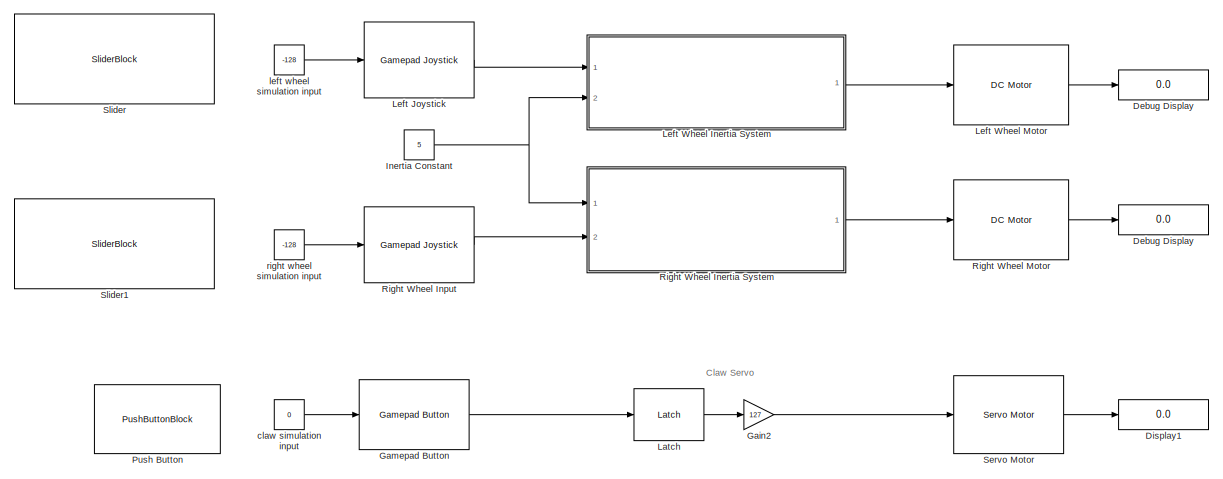
[diagram: root canvas - part 1/2, full width, top band]
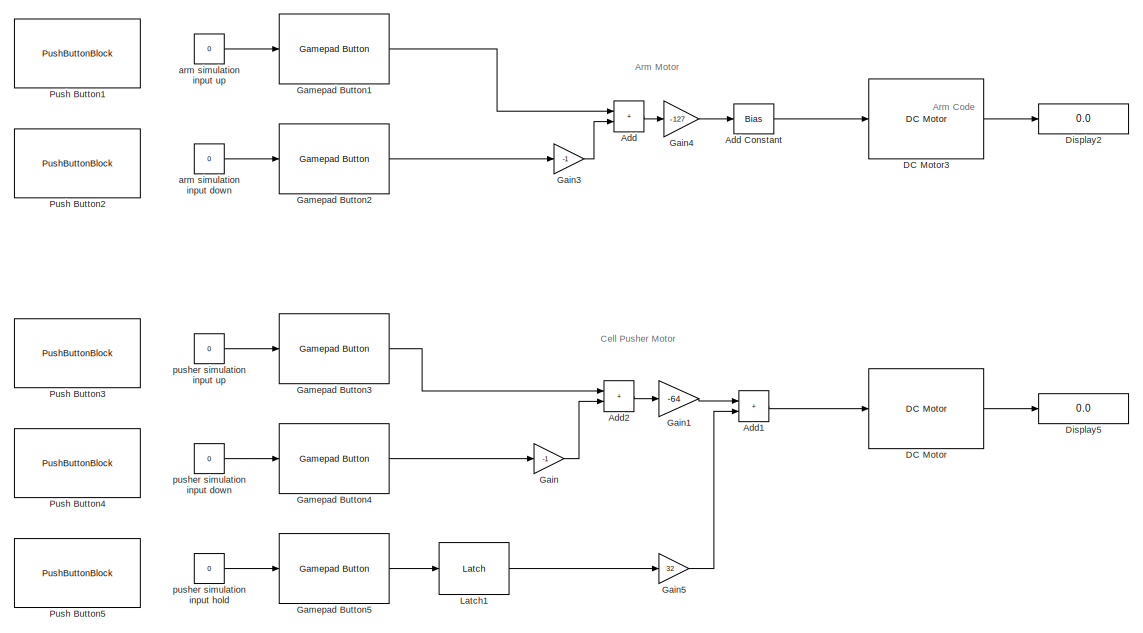
[diagram: root canvas - part 2/2, full width, bottom band]
MODEL slx_83008418470c
KIND model
CONFIG AbsTol = auto
CONFIG EnableMultiTasking = off
CONFIG FixedStep = auto
CONFIG MaxStep = auto
CONFIG MinStep = auto
CONFIG RelTol = 1e-3
CONFIG SampleTimeConstraint = Unconstrained
CONFIG SolverName = VariableStepAuto
CONFIG StartTime = 0.0
CONFIG StopTime = 10.0
BLOCK [Display]  Debug Display
  Decimation = 1
  Ports = [1]
BLOCK [Sum] Add
  IconShape = rectangular
  Ports = [2, 1]
BLOCK [Bias] Add Constant
  Bias = -8
  SaturateOnIntegerOverflow = off
BLOCK [Sum] Add1
  IconShape = rectangular
  Ports = [2, 1]
BLOCK [Sum] Add2
  IconShape = rectangular
  Ports = [2, 1]
BLOCK [Reference] DC Motor  REF=vexarmcortexlib/Actuators/DC Motor
  Ports = [1, 1]
  SourceBlock = vexarmcortexlib/Actuators/DC Motor
  SourceProductBaseCode = EC_VEX_MICRO
  SourceType = DC Motor
BLOCK [Reference] DC Motor3  REF=vexarmcortexlib/Actuators/DC Motor
  Ports = [1, 1]
  SourceBlock = vexarmcortexlib/Actuators/DC Motor
  SourceProductBaseCode = EC_VEX_MICRO
  SourceType = DC Motor
BLOCK [Display] Debug Display
  Decimation = 1
  Ports = [1]
BLOCK [Display] Display1
  Decimation = 1
  Ports = [1]
BLOCK [Display] Display2
  Decimation = 1
  Ports = [1]
BLOCK [Display] Display5
  Decimation = 1
  Ports = [1]
BLOCK [Gain] Gain
  Gain = -1
BLOCK [Gain] Gain1
  Gain = -64
BLOCK [Gain] Gain2
  Gain = 127
BLOCK [Gain] Gain3
  Gain = -1
BLOCK [Gain] Gain4
  Gain = -127
BLOCK [Gain] Gain5
  Gain = 32
BLOCK [Reference] Gamepad Button  REF=vexarmcortexlib/Gamepad/Gamepad Button
  Ports = [1, 1]
  SourceBlock = vexarmcortexlib/Gamepad/Gamepad Button
  SourceProductBaseCode = EC_VEX_MICRO
  SourceType = Gamepad Button
BLOCK [Reference] Gamepad Button1  REF=vexarmcortexlib/Gamepad/Gamepad Button
  Ports = [1, 1]
  SourceBlock = vexarmcortexlib/Gamepad/Gamepad Button
  SourceProductBaseCode = EC_VEX_MICRO
  SourceType = Gamepad Button
BLOCK [Reference] Gamepad Button2  REF=vexarmcortexlib/Gamepad/Gamepad Button
  Ports = [1, 1]
  SourceBlock = vexarmcortexlib/Gamepad/Gamepad Button
  SourceProductBaseCode = EC_VEX_MICRO
  SourceType = Gamepad Button
BLOCK [Reference] Gamepad Button3  REF=vexarmcortexlib/Gamepad/Gamepad Button
  Ports = [1, 1]
  SourceBlock = vexarmcortexlib/Gamepad/Gamepad Button
  SourceProductBaseCode = EC_VEX_MICRO
  SourceType = Gamepad Button
BLOCK [Reference] Gamepad Button4  REF=vexarmcortexlib/Gamepad/Gamepad Button
  Ports = [1, 1]
  SourceBlock = vexarmcortexlib/Gamepad/Gamepad Button
  SourceProductBaseCode = EC_VEX_MICRO
  SourceType = Gamepad Button
BLOCK [Reference] Gamepad Button5  REF=vexarmcortexlib/Gamepad/Gamepad Button
  Ports = [1, 1]
  SourceBlock = vexarmcortexlib/Gamepad/Gamepad Button
  SourceProductBaseCode = EC_VEX_MICRO
  SourceType = Gamepad Button
BLOCK [Constant] Inertia Constant
  Value = 5
BLOCK [Reference] Latch  REF=vexcommonlib/Latch
  Ports = [1, 1]
  SourceBlock = vexcommonlib/Latch
  SourceProductBaseCode = EC_VEX_MICRO,VEXV5
  SourceType = Latch
BLOCK [Reference] Latch1  REF=vexcommonlib/Latch
  Ports = [1, 1]
  SourceBlock = vexcommonlib/Latch
  SourceProductBaseCode = EC_VEX_MICRO,VEXV5
  SourceType = Latch
BLOCK [Reference] Left Joystick  REF=vexarmcortexlib/Gamepad/Gamepad Joystick
  Ports = [1, 1]
  SourceBlock = vexarmcortexlib/Gamepad/Gamepad Joystick
  SourceProductBaseCode = EC_VEX_MICRO
  SourceType = Gamepad Joystick
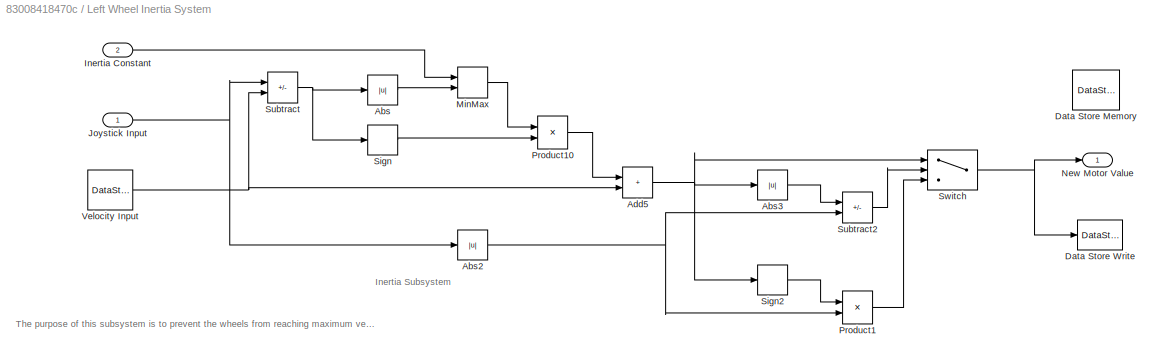
BLOCK [SubSystem] Left Wheel Inertia System
  Ports = [2, 1]
  RequestExecContextInheritance = off
BLOCK [Abs] Left Wheel Inertia System/Abs
  SaturateOnIntegerOverflow = off
BLOCK [Abs] Left Wheel Inertia System/Abs2
  SaturateOnIntegerOverflow = off
BLOCK [Abs] Left Wheel Inertia System/Abs3
  SaturateOnIntegerOverflow = off
BLOCK [Sum] Left Wheel Inertia System/Add5
  IconShape = rectangular
  Ports = [2, 1]
BLOCK [DataStoreMemory] Left Wheel Inertia System/Data Store Memory
  DataStoreName = velocity1
  ReadBeforeWriteMsg = warning
  ShowAdditionalParam = off
  WriteAfterReadMsg = warning
  WriteAfterWriteMsg = warning
BLOCK [DataStoreWrite] Left Wheel Inertia System/Data Store Write
  DataStoreName = velocity1
  Ports = [1]
  SampleTime = 0.02
BLOCK [Inport] Left Wheel Inertia System/Inertia Constant
  Port = 2
BLOCK [Inport] Left Wheel Inertia System/Joystick Input
BLOCK [MinMax] Left Wheel Inertia System/MinMax
  Inputs = 2
  Ports = [2, 1]
BLOCK [Outport] Left Wheel Inertia System/New Motor Value
BLOCK [Product] Left Wheel Inertia System/Product1
  Ports = [2, 1]
  RndMeth = Zero
BLOCK [Product] Left Wheel Inertia System/Product10
  Ports = [2, 1]
  RndMeth = Zero
BLOCK [Signum] Left Wheel Inertia System/Sign
BLOCK [Signum] Left Wheel Inertia System/Sign2
BLOCK [Sum] Left Wheel Inertia System/Subtract
  IconShape = rectangular
  Inputs = +-
  Ports = [2, 1]
BLOCK [Sum] Left Wheel Inertia System/Subtract2
  IconShape = rectangular
  Inputs = -+
  Ports = [2, 1]
BLOCK [Switch] Left Wheel Inertia System/Switch
  Criteria = u2 > Threshold
  InputSameDT = off
  SaturateOnIntegerOverflow = off
BLOCK [DataStoreRead] Left Wheel Inertia System/Velocity Input
  DataStoreName = velocity1
  Ports = [0, 1]
  SampleTime = 0.02
BLOCK [Reference] Left Wheel Motor  REF=vexarmcortexlib/Actuators/DC Motor
  Ports = [1, 1]
  SourceBlock = vexarmcortexlib/Actuators/DC Motor
  SourceProductBaseCode = EC_VEX_MICRO
  SourceType = DC Motor
BLOCK [PushButtonBlock] Push Button
  ButtonText = Claw Button
BLOCK [PushButtonBlock] Push Button1
  ButtonText = Raise Arm
BLOCK [PushButtonBlock] Push Button2
  ButtonText = Lower Arm
BLOCK [PushButtonBlock] Push Button3
  ButtonText = Raise Pusher
BLOCK [PushButtonBlock] Push Button4
  ButtonText = Lower Pusher
BLOCK [PushButtonBlock] Push Button5
  ButtonText = Pusher Hold
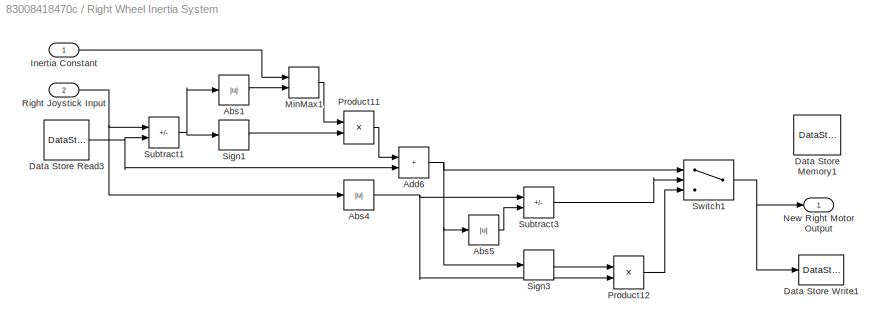
BLOCK [SubSystem] Right Wheel Inertia System
  Ports = [2, 1]
  RequestExecContextInheritance = off
BLOCK [Abs] Right Wheel Inertia System/Abs1
  SaturateOnIntegerOverflow = off
BLOCK [Abs] Right Wheel Inertia System/Abs4
  SaturateOnIntegerOverflow = off
BLOCK [Abs] Right Wheel Inertia System/Abs5
  SaturateOnIntegerOverflow = off
BLOCK [Sum] Right Wheel Inertia System/Add6
  IconShape = rectangular
  Ports = [2, 1]
BLOCK [DataStoreMemory] Right Wheel Inertia System/Data Store Memory1
  DataStoreName = velocity2
  ReadBeforeWriteMsg = warning
  ShowAdditionalParam = off
  WriteAfterReadMsg = warning
  WriteAfterWriteMsg = warning
BLOCK [DataStoreRead] Right Wheel Inertia System/Data Store Read3
  DataStoreName = velocity2
  Ports = [0, 1]
  SampleTime = 0.02
BLOCK [DataStoreWrite] Right Wheel Inertia System/Data Store Write1
  DataStoreName = velocity2
  Ports = [1]
  SampleTime = 0.02
BLOCK [Inport] Right Wheel Inertia System/Inertia Constant
BLOCK [MinMax] Right Wheel Inertia System/MinMax1
  Inputs = 2
  Ports = [2, 1]
BLOCK [Outport] Right Wheel Inertia System/New Right Motor Output
BLOCK [Product] Right Wheel Inertia System/Product11
  Ports = [2, 1]
  RndMeth = Zero
BLOCK [Product] Right Wheel Inertia System/Product12
  Ports = [2, 1]
  RndMeth = Zero
BLOCK [Inport] Right Wheel Inertia System/Right Joystick Input
  Port = 2
BLOCK [Signum] Right Wheel Inertia System/Sign1
BLOCK [Signum] Right Wheel Inertia System/Sign3
BLOCK [Sum] Right Wheel Inertia System/Subtract1
  IconShape = rectangular
  Inputs = +-
  Ports = [2, 1]
BLOCK [Sum] Right Wheel Inertia System/Subtract3
  IconShape = rectangular
  Inputs = +-
  Ports = [2, 1]
BLOCK [Switch] Right Wheel Inertia System/Switch1
  Criteria = u2 > Threshold
  InputSameDT = off
  SaturateOnIntegerOverflow = off
BLOCK [Reference] Right Wheel Input  REF=vexarmcortexlib/Gamepad/Gamepad Joystick
  Ports = [1, 1]
  SourceBlock = vexarmcortexlib/Gamepad/Gamepad Joystick
  SourceProductBaseCode = EC_VEX_MICRO
  SourceType = Gamepad Joystick
BLOCK [Reference] Right Wheel Motor  REF=vexarmcortexlib/Actuators/DC Motor
  Ports = [1, 1]
  SourceBlock = vexarmcortexlib/Actuators/DC Motor
  SourceProductBaseCode = EC_VEX_MICRO
  SourceType = DC Motor
BLOCK [Reference] Servo Motor  REF=vexarmcortexlib/Actuators/Servo Motor
  Ports = [1, 1]
  SourceBlock = vexarmcortexlib/Actuators/Servo Motor
  SourceProductBaseCode = EC_VEX_MICRO
  SourceType = Servo Motor
BLOCK [SliderBlock] Slider
  ScaleMax = 127
  ScaleMin = -128
BLOCK [SliderBlock] Slider1
  ScaleMax = 127
  ScaleMin = -128
BLOCK [Constant] arm simulation input down
  Value = 0
BLOCK [Constant] arm simulation input up
  Value = 0
BLOCK [Constant] claw simulation input
  Value = 0
BLOCK [Constant] left wheel simulation input
  SampleTime = 0.02
  Value = -128
BLOCK [Constant] pusher simulation input down
  Value = 0
BLOCK [Constant] pusher simulation input hold 
  Value = 0
BLOCK [Constant] pusher simulation input up
  Value = 0
BLOCK [Constant] right wheel simulation input
  SampleTime = 0.02
  Value = -128
ANNOTATION (root): Arm Code
ANNOTATION (root): Arm Motor
ANNOTATION (root): Cell Pusher Motor
ANNOTATION (root): Claw Servo
ANNOTATION Left Wheel Inertia System: The purpose of this subsystem is to prevent the wheels from reaching maximum velocity too quickly, instead forcing them to gradually reach maximum velocity. The subsystem is also designed to allow velocity to immediately drop for the robot to stop quickly
ANNOTATION Left Wheel Inertia System: Inertia Subsystem
LINE Add Constant:1 -> DC Motor3:1
LINE Add1:1 -> DC Motor:1
LINE Add2:1 -> Gain1:1
LINE Add:1 -> Gain4:1
LINE DC Motor3:1 -> Display2:1
LINE DC Motor:1 -> Display5:1
LINE Gain1:1 -> Add1:1
LINE Gain2:1 -> Servo Motor:1
LINE Gain3:1 -> Add:2
LINE Gain4:1 -> Add Constant:1
LINE Gain5:1 -> Add1:2
LINE Gain:1 -> Add2:2
LINE Gamepad Button1:1 -> Add:1
LINE Gamepad Button2:1 -> Gain3:1
LINE Gamepad Button3:1 -> Add2:1
LINE Gamepad Button4:1 -> Gain:1
LINE Gamepad Button5:1 -> Latch1:1
LINE Gamepad Button:1 -> Latch:1
NET Inertia Constant:1 -> Left Wheel Inertia System:2, Right Wheel Inertia System:1
LINE Latch1:1 -> Gain5:1
LINE Latch:1 -> Gain2:1
LINE Left Joystick:1 -> Left Wheel Inertia System:1
NET Left Wheel Inertia System/Abs2:1 -> Left Wheel Inertia System/Product1:2, Left Wheel Inertia System/Subtract2:2
LINE Left Wheel Inertia System/Abs3:1 -> Left Wheel Inertia System/Subtract2:1
LINE Left Wheel Inertia System/Abs:1 -> Left Wheel Inertia System/MinMax:2
NET Left Wheel Inertia System/Add5:1 -> Left Wheel Inertia System/Abs3:1, Left Wheel Inertia System/Sign2:1, Left Wheel Inertia System/Switch:1
LINE Left Wheel Inertia System/Inertia Constant:1 -> Left Wheel Inertia System/MinMax:1
NET Left Wheel Inertia System/Joystick Input:1 -> Left Wheel Inertia System/Abs2:1, Left Wheel Inertia System/Subtract:1
LINE Left Wheel Inertia System/MinMax:1 -> Left Wheel Inertia System/Product10:1
LINE Left Wheel Inertia System/Product10:1 -> Left Wheel Inertia System/Add5:1
LINE Left Wheel Inertia System/Product1:1 -> Left Wheel Inertia System/Switch:3
LINE Left Wheel Inertia System/Sign2:1 -> Left Wheel Inertia System/Product1:1
LINE Left Wheel Inertia System/Sign:1 -> Left Wheel Inertia System/Product10:2
LINE Left Wheel Inertia System/Subtract2:1 -> Left Wheel Inertia System/Switch:2
NET Left Wheel Inertia System/Subtract:1 -> Left Wheel Inertia System/Abs:1, Left Wheel Inertia System/Sign:1
NET Left Wheel Inertia System/Switch:1 -> Left Wheel Inertia System/Data Store Write:1, Left Wheel Inertia System/New Motor Value:1
NET Left Wheel Inertia System/Velocity Input:1 -> Left Wheel Inertia System/Add5:2, Left Wheel Inertia System/Subtract:2
LINE Left Wheel Inertia System:1 -> Left Wheel Motor:1
LINE Left Wheel Motor:1 ->  Debug Display:1
LINE Right Wheel Inertia System/Abs1:1 -> Right Wheel Inertia System/MinMax1:2
NET Right Wheel Inertia System/Abs4:1 -> Right Wheel Inertia System/Product12:2, Right Wheel Inertia System/Subtract3:1
LINE Right Wheel Inertia System/Abs5:1 -> Right Wheel Inertia System/Subtract3:2
NET Right Wheel Inertia System/Add6:1 -> Right Wheel Inertia System/Abs5:1, Right Wheel Inertia System/Sign3:1, Right Wheel Inertia System/Switch1:1
NET Right Wheel Inertia System/Data Store Read3:1 -> Right Wheel Inertia System/Add6:2, Right Wheel Inertia System/Subtract1:2
LINE Right Wheel Inertia System/Inertia Constant:1 -> Right Wheel Inertia System/MinMax1:1
LINE Right Wheel Inertia System/MinMax1:1 -> Right Wheel Inertia System/Product11:1
LINE Right Wheel Inertia System/Product11:1 -> Right Wheel Inertia System/Add6:1
LINE Right Wheel Inertia System/Product12:1 -> Right Wheel Inertia System/Switch1:3
NET Right Wheel Inertia System/Right Joystick Input:1 -> Right Wheel Inertia System/Abs4:1, Right Wheel Inertia System/Subtract1:1
LINE Right Wheel Inertia System/Sign1:1 -> Right Wheel Inertia System/Product11:2
LINE Right Wheel Inertia System/Sign3:1 -> Right Wheel Inertia System/Product12:1
NET Right Wheel Inertia System/Subtract1:1 -> Right Wheel Inertia System/Abs1:1, Right Wheel Inertia System/Sign1:1
LINE Right Wheel Inertia System/Subtract3:1 -> Right Wheel Inertia System/Switch1:2
NET Right Wheel Inertia System/Switch1:1 -> Right Wheel Inertia System/Data Store Write1:1, Right Wheel Inertia System/New Right Motor Output:1
LINE Right Wheel Inertia System:1 -> Right Wheel Motor:1
LINE Right Wheel Input:1 -> Right Wheel Inertia System:2
LINE Right Wheel Motor:1 -> Debug Display:1
LINE Servo Motor:1 -> Display1:1
LINE arm simulation input down:1 -> Gamepad Button2:1
LINE arm simulation input up:1 -> Gamepad Button1:1
LINE claw simulation input:1 -> Gamepad Button:1
LINE left wheel simulation input:1 -> Left Joystick:1
LINE pusher simulation input down:1 -> Gamepad Button4:1
LINE pusher simulation input hold :1 -> Gamepad Button5:1
LINE pusher simulation input up:1 -> Gamepad Button3:1
LINE right wheel simulation input:1 -> Right Wheel Input:1
note: NET lines group one-source signal fan-out (src -> all destinations, sorted); 1:1 wires keep LINE
